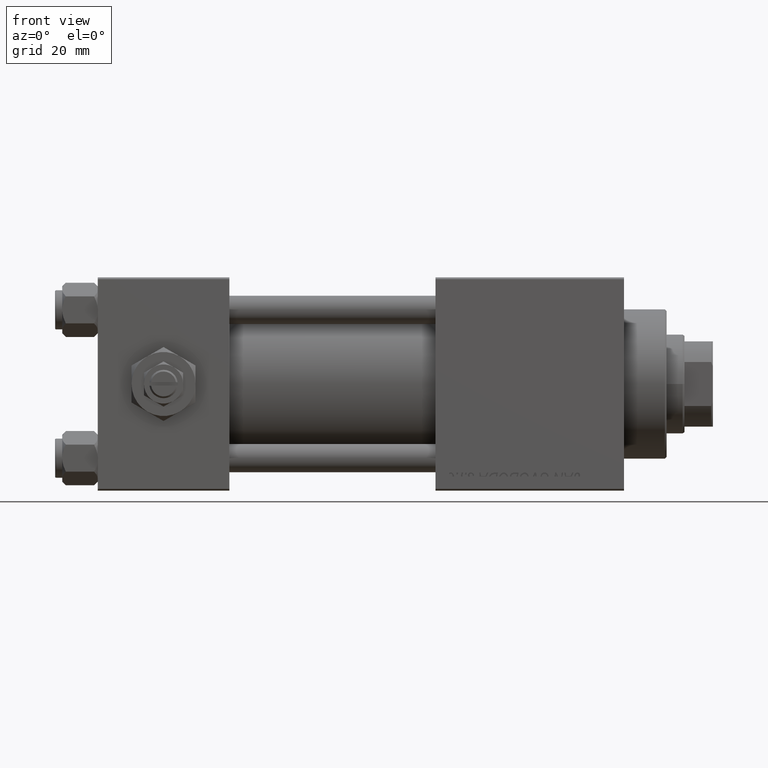
[diagram: clean part render]
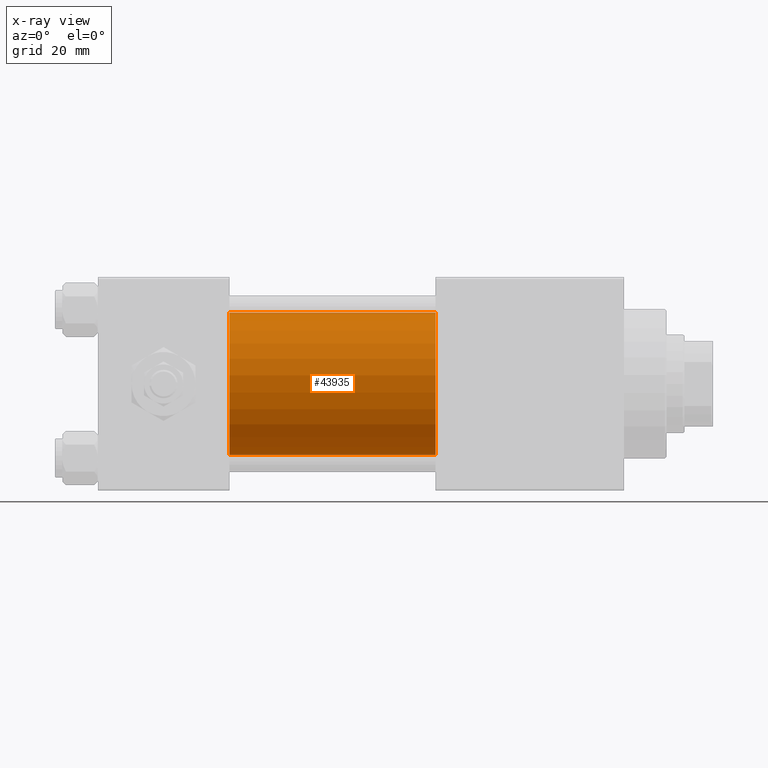
[diagram: x-ray — body ghosted, one internal face saturated and labeled with its STEP entity id]
A machine part, front view, then the same camera in x-ray: the body is ghosted and one INTERNAL B-rep face — a face not visible from any outside direction — is saturated and labeled: STEP entity #43935.
In plain terms, the highlighted cylindrical surface (partial cylindrical patch) has radius 20 mm, axis along (-1, -0, -0).
Its self-contained STEP definition (entity closure, byte-faithful):
#2872 = VERTEX_POINT ( 'NONE', #41736 ) ;
#4587 = EDGE_CURVE ( 'NONE', #39475, #16716, #12825, .T. ) ;
#7787 = AXIS2_PLACEMENT_3D ( 'NONE', #28831, #44831, #8874 ) ;
#8874 = DIRECTION ( 'NONE',  ( 0.000000000000000000, 0.000000000000000000, -1.000000000000000000 ) ) ;
#8934 = CYLINDRICAL_SURFACE ( 'NONE', #34984, 20.00000000000000000 ) ;
#11823 = LINE ( 'NONE', #43851, #21977 ) ;
#12610 = DIRECTION ( 'NONE',  ( 0.000000000000000000, 0.000000000000000000, 1.000000000000000000 ) ) ;
#12631 = DIRECTION ( 'NONE',  ( 1.000000000000000000, 0.000000000000000000, 0.000000000000000000 ) ) ;
#12825 = CIRCLE ( 'NONE', #7787, 20.00000000000000000 ) ;
#15402 = EDGE_CURVE ( 'NONE', #2872, #39475, #11823, .T. ) ;
#15583 = AXIS2_PLACEMENT_3D ( 'NONE', #48605, #12631, #41508 ) ;
#15724 = VECTOR ( 'NONE', #20790, 1000.000000000000000 ) ;
#16716 = VERTEX_POINT ( 'NONE', #25936 ) ;
#17343 = LINE ( 'NONE', #33118, #15724 ) ;
#19980 = DIRECTION ( 'NONE',  ( -1.000000000000000000, -0.000000000000000000, -0.000000000000000000 ) ) ;
#20790 = DIRECTION ( 'NONE',  ( -1.000000000000000000, -0.000000000000000000, -0.000000000000000000 ) ) ;
#21445 = ORIENTED_EDGE ( 'NONE', *, *, #28255, .T. ) ;
#21977 = VECTOR ( 'NONE', #43597, 1000.000000000000000 ) ;
#22209 = CARTESIAN_POINT ( 'NONE',  ( 95.00000000000000000, -1.527916156705046464E-16, -20.00000000000000000 ) ) ;
#23984 = EDGE_LOOP ( 'NONE', ( #21445, #33389, #39167, #45217 ) ) ;
#24192 = CARTESIAN_POINT ( 'NONE',  ( 95.00000000000000000, -2.602085213965210642E-15, 0.000000000000000000 ) ) ;
#25936 = CARTESIAN_POINT ( 'NONE',  ( 37.00000000000000000, -1.527916156705046464E-16, -20.00000000000000000 ) ) ;
#28255 = EDGE_CURVE ( 'NONE', #2872, #29678, #29004, .T. ) ;
#28831 = CARTESIAN_POINT ( 'NONE',  ( 37.00000000000000000, -2.602085213965210642E-15, 0.000000000000000000 ) ) ;
#29004 = CIRCLE ( 'NONE', #15583, 20.00000000000000000 ) ;
#29678 = VERTEX_POINT ( 'NONE', #22209 ) ;
#33118 = CARTESIAN_POINT ( 'NONE',  ( 95.00000000000000000, -1.527916156705046464E-16, -20.00000000000000000 ) ) ;
#33389 = ORIENTED_EDGE ( 'NONE', *, *, #48723, .T. ) ;
#34984 = AXIS2_PLACEMENT_3D ( 'NONE', #24192, #19980, #12610 ) ;
#39167 = ORIENTED_EDGE ( 'NONE', *, *, #4587, .F. ) ;
#39475 = VERTEX_POINT ( 'NONE', #42319 ) ;
#41508 = DIRECTION ( 'NONE',  ( 0.000000000000000000, 0.000000000000000000, -1.000000000000000000 ) ) ;
#41736 = CARTESIAN_POINT ( 'NONE',  ( 95.00000000000000000, -2.602085213965210642E-15, 20.00000000000000000 ) ) ;
#42319 = CARTESIAN_POINT ( 'NONE',  ( 37.00000000000000000, -2.602085213965210642E-15, 20.00000000000000000 ) ) ;
#43597 = DIRECTION ( 'NONE',  ( -1.000000000000000000, -0.000000000000000000, -0.000000000000000000 ) ) ;
#43851 = CARTESIAN_POINT ( 'NONE',  ( 95.00000000000000000, -2.602085213965210642E-15, 20.00000000000000000 ) ) ;
#43935 = ADVANCED_FACE ( 'NONE', ( #48584 ), #8934, .F. ) ;
#44831 = DIRECTION ( 'NONE',  ( 1.000000000000000000, 0.000000000000000000, 0.000000000000000000 ) ) ;
#45217 = ORIENTED_EDGE ( 'NONE', *, *, #15402, .F. ) ;
#48584 = FACE_OUTER_BOUND ( 'NONE', #23984, .T. ) ;
#48605 = CARTESIAN_POINT ( 'NONE',  ( 95.00000000000000000, -2.602085213965210642E-15, 0.000000000000000000 ) ) ;
#48723 = EDGE_CURVE ( 'NONE', #29678, #16716, #17343, .T. ) ;